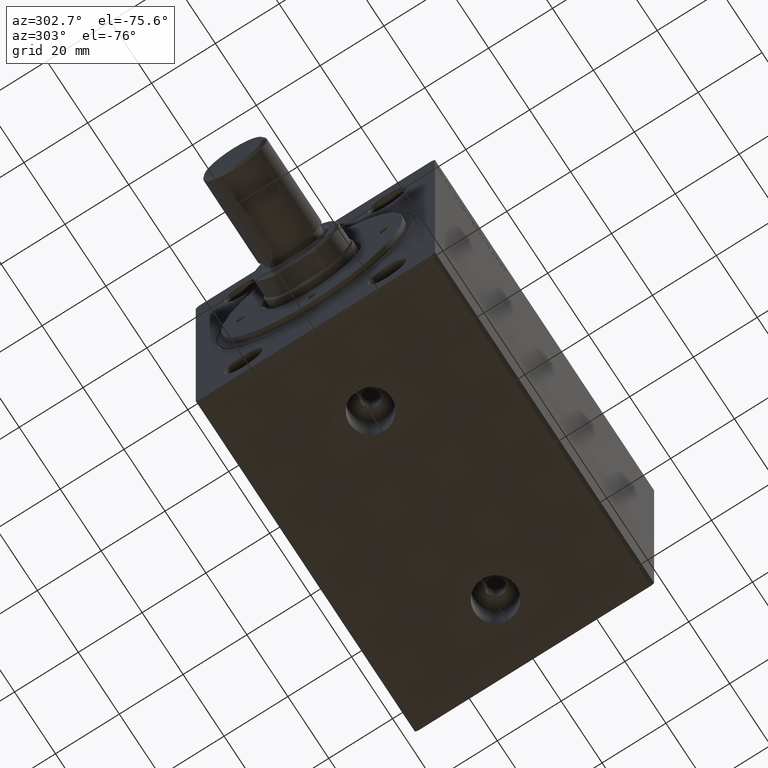
[diagram: clean part render]
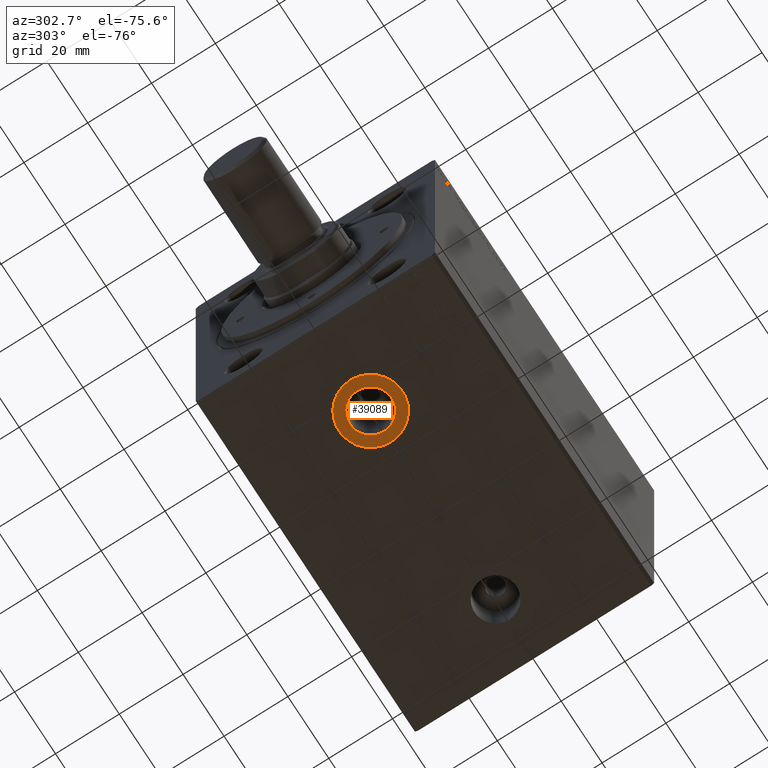
[diagram: same view with one face highlighted and labeled with its STEP entity id]
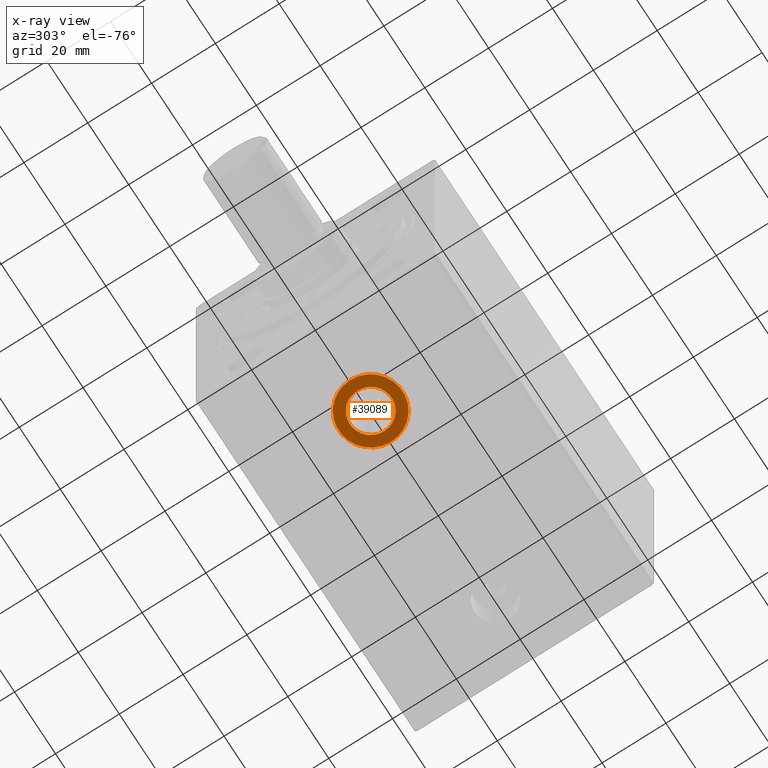
[diagram: x-ray of the same camera — body ghosted, the highlighted face saturated]
A machine part, auxiliary view. The second image highlights one B-rep face of the part: STEP entity #39089.
The next image is the same camera in x-ray: the body ghosted, the highlighted face saturated — about 0% of this face is hidden behind the body in this view.
In plain terms, the highlighted planar face has unit normal (0, 0, -1).
Its self-contained STEP definition (entity closure, byte-faithful):
#539 = ORIENTED_EDGE ( 'NONE', *, *, #41385, .T. ) ;
#847 = AXIS2_PLACEMENT_3D ( 'NONE', #1515, #22001, #28516 ) ;
#1515 = CARTESIAN_POINT ( 'NONE',  ( 0.000000000000000000, 0.000000000000000000, -49.89999999999999858 ) ) ;
#1718 = CARTESIAN_POINT ( 'NONE',  ( 27.00000000000000000, -6.135200823405162107E-15, -49.89999999999999858 ) ) ;
#2444 = ORIENTED_EDGE ( 'NONE', *, *, #6313, .T. ) ;
#3119 = DIRECTION ( 'NONE',  ( -1.000000000000000000, 0.000000000000000000, 0.000000000000000000 ) ) ;
#4658 = CIRCLE ( 'NONE', #16185, 9.999999999999998224 ) ;
#5240 = DIRECTION ( 'NONE',  ( 0.000000000000000000, 0.000000000000000000, -1.000000000000000000 ) ) ;
#5328 = DIRECTION ( 'NONE',  ( 0.000000000000000000, 0.000000000000000000, -1.000000000000000000 ) ) ;
#6313 = EDGE_CURVE ( 'NONE', #17492, #15592, #4658, .T. ) ;
#6442 = ORIENTED_EDGE ( 'NONE', *, *, #33683, .F. ) ;
#6918 = AXIS2_PLACEMENT_3D ( 'NONE', #1718, #5328, #12083 ) ;
#7551 = CIRCLE ( 'NONE', #8288, 6.580000000000002736 ) ;
#7893 = VERTEX_POINT ( 'NONE', #33678 ) ;
#8288 = AXIS2_PLACEMENT_3D ( 'NONE', #24268, #41316, #3119 ) ;
#8720 = PLANE ( 'NONE',  #847 ) ;
#8722 = CARTESIAN_POINT ( 'NONE',  ( 27.00000000000000000, -6.135200823405162107E-15, -49.89999999999999858 ) ) ;
#12083 = DIRECTION ( 'NONE',  ( -1.000000000000000000, 0.000000000000000000, 0.000000000000000000 ) ) ;
#13119 = VERTEX_POINT ( 'NONE', #29872 ) ;
#15484 = DIRECTION ( 'NONE',  ( 0.000000000000000000, 0.000000000000000000, -1.000000000000000000 ) ) ;
#15592 = VERTEX_POINT ( 'NONE', #16246 ) ;
#16185 = AXIS2_PLACEMENT_3D ( 'NONE', #8722, #15484, #25377 ) ;
#16246 = CARTESIAN_POINT ( 'NONE',  ( 17.00000000000000000, -6.135200823405162107E-15, -49.89999999999999858 ) ) ;
#17492 = VERTEX_POINT ( 'NONE', #27539 ) ;
#18848 = FACE_OUTER_BOUND ( 'NONE', #36135, .T. ) ;
#22001 = DIRECTION ( 'NONE',  ( 0.000000000000000000, 0.000000000000000000, -1.000000000000000000 ) ) ;
#22336 = CARTESIAN_POINT ( 'NONE',  ( 27.00000000000000000, -6.135200823405162107E-15, -49.89999999999999858 ) ) ;
#22684 = AXIS2_PLACEMENT_3D ( 'NONE', #22336, #5240, #32676 ) ;
#24268 = CARTESIAN_POINT ( 'NONE',  ( 27.00000000000000000, -6.135200823405162107E-15, -49.89999999999999858 ) ) ;
#24835 = CIRCLE ( 'NONE', #22684, 9.999999999999998224 ) ;
#25377 = DIRECTION ( 'NONE',  ( -1.000000000000000000, 0.000000000000000000, 0.000000000000000000 ) ) ;
#27539 = CARTESIAN_POINT ( 'NONE',  ( 37.00000000000000000, -4.910554024257809837E-15, -49.89999999999999858 ) ) ;
#28516 = DIRECTION ( 'NONE',  ( -1.000000000000000000, 0.000000000000000000, -0.000000000000000000 ) ) ;
#29872 = CARTESIAN_POINT ( 'NONE',  ( 33.57999999999999829, -5.329383229566203065E-15, -49.89999999999999858 ) ) ;
#32024 = CIRCLE ( 'NONE', #6918, 6.580000000000002736 ) ;
#32676 = DIRECTION ( 'NONE',  ( -1.000000000000000000, 0.000000000000000000, 0.000000000000000000 ) ) ;
#33678 = CARTESIAN_POINT ( 'NONE',  ( 20.41999999999999815, -6.135200823405162107E-15, -49.89999999999999858 ) ) ;
#33683 = EDGE_CURVE ( 'NONE', #7893, #13119, #32024, .T. ) ;
#35778 = ORIENTED_EDGE ( 'NONE', *, *, #42817, .F. ) ;
#36135 = EDGE_LOOP ( 'NONE', ( #539, #2444 ) ) ;
#36373 = EDGE_LOOP ( 'NONE', ( #6442, #35778 ) ) ;
#39089 = ADVANCED_FACE ( 'NONE', ( #39499, #18848 ), #8720, .T. ) ;
#39499 = FACE_BOUND ( 'NONE', #36373, .T. ) ;
#41316 = DIRECTION ( 'NONE',  ( 0.000000000000000000, 0.000000000000000000, -1.000000000000000000 ) ) ;
#41385 = EDGE_CURVE ( 'NONE', #15592, #17492, #24835, .T. ) ;
#42817 = EDGE_CURVE ( 'NONE', #13119, #7893, #7551, .T. ) ;